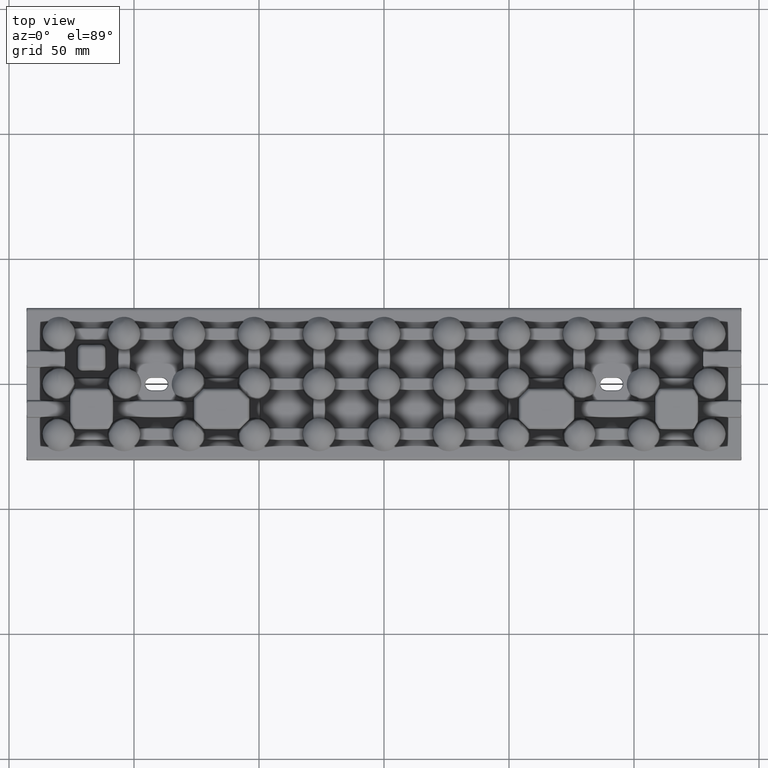
[diagram: clean part render]
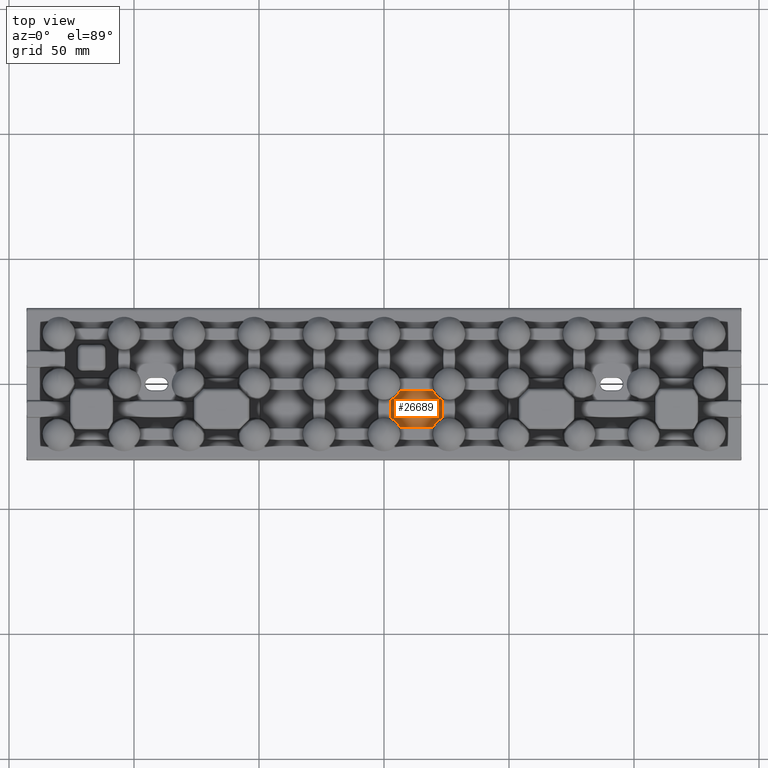
[diagram: same view with one face highlighted and labeled with its STEP entity id]
A machine part, top view. The second image highlights one B-rep face of the part: STEP entity #26689.
In plain terms, the highlighted planar face has unit normal (-0, 0, 1).
Its self-contained STEP definition (entity closure, byte-faithful):
#3742 = CARTESIAN_POINT ( 'NONE',  ( 6.315966316699420900, -2.741422193701768400, 2.000000000000000000 ) ) ;
#4114 = CARTESIAN_POINT ( 'NONE',  ( 2.741422193701768000, -6.345385911169477000, 2.000000000000000000 ) ) ;
#5191 = ORIENTED_EDGE ( 'NONE', *, *, #21857, .F. ) ;
#7078 = EDGE_CURVE ( 'NONE', #44565, #33855, #13815, .T. ) ;
#7978 = DIRECTION ( 'NONE',  ( -0.0000000000000000000, 0.0000000000000000000, 1.000000000000000000 ) ) ;
#10615 = CARTESIAN_POINT ( 'NONE',  ( 22.47589171774211200, -14.03245563550353100, 1.999999999999997800 ) ) ;
#11735 = CARTESIAN_POINT ( 'NONE',  ( 2.741422193701768000, -6.345385911169477000, 2.000000000000000000 ) ) ;
#11989 = CARTESIAN_POINT ( 'NONE',  ( 6.315966316699420900, -2.741422193701768400, 2.000000000000000000 ) ) ;
#12011 = ORIENTED_EDGE ( 'NONE', *, *, #67958, .F. ) ;
#13200 = DIRECTION ( 'NONE',  ( 0.0000000000000000000, 1.000000000000000000, -0.0000000000000000000 ) ) ;
#13815 = B_SPLINE_CURVE_WITH_KNOTS ( 'NONE', 3,
 ( #101892, #102245, #10615, #69018, #19110, #77411, #27464, #85783, #35857, #94218, #44250, #102616 ),
 .UNSPECIFIED., .F., .F.,
 ( 4, 2, 2, 2, 2, 4 ),
 ( 0.0000000000000000000, 0.001295068706186202700, 0.001942603059279298300, 0.002590137412372393800, 0.003885206118558585200, 0.005180274824744776300 ),
 .UNSPECIFIED. ) ;
#14100 = CARTESIAN_POINT ( 'NONE',  ( 23.25857780629830900, -13.65461406036727100, 2.000000000000000000 ) ) ;
#15479 = CARTESIAN_POINT ( 'NONE',  ( 2.741422193701769800, -14.43582890270256800, 2.000000000000000000 ) ) ;
#15930 = LINE ( 'NONE', #89771, #60230 ) ;
#16424 = CARTESIAN_POINT ( 'NONE',  ( 5.943341994366689600, -16.47325498181712400, 1.999999999999999100 ) ) ;
#19110 = CARTESIAN_POINT ( 'NONE',  ( 21.76516652872660600, -14.52388456786810300, 1.999999999999996700 ) ) ;
#19440 = LINE ( 'NONE', #34272, #85948 ) ;
#20005 = VERTEX_POINT ( 'NONE', #106823 ) ;
#20210 = CARTESIAN_POINT ( 'NONE',  ( 3.524108263181240400, -5.967544323129207100, 2.000000000000000900 ) ) ;
#21218 = VERTEX_POINT ( 'NONE', #4114 ) ;
#21675 = VERTEX_POINT ( 'NONE', #11989 ) ;
#21681 = CARTESIAN_POINT ( 'NONE',  ( 20.41397382994982500, -4.067312736983884000, 1.999999999999997800 ) ) ;
#21857 = EDGE_CURVE ( 'NONE', #20005, #68088, #90964, .T. ) ;
#21928 = EDGE_CURVE ( 'NONE', #20005, #33855, #19440, .T. ) ;
#24815 = CARTESIAN_POINT ( 'NONE',  ( 5.458179694001565000, -15.75793540114586300, 2.000000000000312600 ) ) ;
#26689 = ADVANCED_FACE ( 'NONE', ( #73991 ), #108030, .T. ) ;
#26833 = ORIENTED_EDGE ( 'NONE', *, *, #40077, .F. ) ;
#27464 = CARTESIAN_POINT ( 'NONE',  ( 21.26731188972543800, -14.94879724506803100, 1.999999999999999100 ) ) ;
#28582 = CARTESIAN_POINT ( 'NONE',  ( 4.234833434024561200, -5.476115384367102700, 1.999999999999999100 ) ) ;
#29685 = CARTESIAN_POINT ( 'NONE',  ( 19.85337189919918200, -3.144642073433744600, 1.999999999999999600 ) ) ;
#30040 = CARTESIAN_POINT ( 'NONE',  ( 20.81581587538955300, -4.580183335617707700, 2.000000000000313100 ) ) ;
#30386 = EDGE_LOOP ( 'NONE', ( #103383, #36634, #12011, #65014, #26833, #92169, #5191, #83261 ) ) ;
#33198 = CARTESIAN_POINT ( 'NONE',  ( 5.037601783124292100, -15.25623881247116900, 2.000000000000265100 ) ) ;
#33855 = VERTEX_POINT ( 'NONE', #99737 ) ;
#34163 = EDGE_CURVE ( 'NONE', #44565, #38449, #15930, .T. ) ;
#34272 = CARTESIAN_POINT ( 'NONE',  ( 20.43582890270252500, -17.25857780629830200, 2.000000000000000000 ) ) ;
#35857 = CARTESIAN_POINT ( 'NONE',  ( 20.53792801313349500, -15.74603679258445500, 2.000000000000000900 ) ) ;
#36634 = ORIENTED_EDGE ( 'NONE', *, *, #34163, .T. ) ;
#36960 = CARTESIAN_POINT ( 'NONE',  ( 4.732688062117533800, -5.051202708837520200, 2.000000000000000000 ) ) ;
#37446 = CARTESIAN_POINT ( 'NONE',  ( 19.68403363611609100, -2.741422193701764900, 2.000000000000000000 ) ) ;
#38431 = CARTESIAN_POINT ( 'NONE',  ( 21.42064771702581200, -5.205751179353793400, 2.000000000000266000 ) ) ;
#38449 = VERTEX_POINT ( 'NONE', #47460 ) ;
#38670 = VECTOR ( 'NONE', #55305, 1000.000000000000000 ) ;
#40077 = EDGE_CURVE ( 'NONE', #21218, #21675, #84989, .T. ) ;
#41225 = CARTESIAN_POINT ( 'NONE',  ( 6.315966316699402200, -17.25857780629830500, 2.000000000000000000 ) ) ;
#41590 = CARTESIAN_POINT ( 'NONE',  ( 4.246793451152211000, -14.52009018028383000, 2.000000000000000000 ) ) ;
#44250 = CARTESIAN_POINT ( 'NONE',  ( 19.85335993345948300, -16.85538641879258000, 2.000000000000000900 ) ) ;
#44565 = VERTEX_POINT ( 'NONE', #14100 ) ;
#45357 = CARTESIAN_POINT ( 'NONE',  ( 5.462071932007321900, -4.253963174259894200, 1.999999999999999600 ) ) ;
#46818 = CARTESIAN_POINT ( 'NONE',  ( 22.46971738124317100, -5.963965219673109900, 2.000000000000000900 ) ) ;
#47460 = CARTESIAN_POINT ( 'NONE',  ( 23.25857780629830900, -6.345385939632755900, 2.000000000000000000 ) ) ;
#49988 = CARTESIAN_POINT ( 'NONE',  ( 3.144049424876027600, -13.82559729236460600, 2.000000000000003100 ) ) ;
#53387 = CARTESIAN_POINT ( 'NONE',  ( 3.144112299297860500, -6.174376006833239400, 2.000000000000000400 ) ) ;
#53750 = CARTESIAN_POINT ( 'NONE',  ( 6.146640014527044100, -3.144613572644897400, 2.000000000000000000 ) ) ;
#55173 = CARTESIAN_POINT ( 'NONE',  ( 23.25857780629830900, -6.345385939632755900, 2.000000000000000000 ) ) ;
#55305 = DIRECTION ( 'NONE',  ( -1.000000000000000000, -2.891205793294668500E-016, 0.0000000000000000000 ) ) ;
#60230 = VECTOR ( 'NONE', #13200, 1000.000000000000000 ) ;
#60789 = LINE ( 'NONE', #96899, #38670 ) ;
#64911 = CARTESIAN_POINT ( 'NONE',  ( 6.146628048878926400, -16.85535793534833700, 1.999999999999999600 ) ) ;
#65014 = ORIENTED_EDGE ( 'NONE', *, *, #107525, .T. ) ;
#65279 = LINE ( 'NONE', #15479, #79646 ) ;
#66333 = DIRECTION ( 'NONE',  ( 1.000000000000000000, 0.0000000000000000000, 0.0000000000000000000 ) ) ;
#67958 = EDGE_CURVE ( 'NONE', #87144, #38449, #83058, .T. ) ;
#68088 = VERTEX_POINT ( 'NONE', #82863 ) ;
#69018 = CARTESIAN_POINT ( 'NONE',  ( 21.93870324216921500, -14.39448527756340100, 1.999999999999999600 ) ) ;
#71629 = CARTESIAN_POINT ( 'NONE',  ( 20.05665795104284800, -3.526745035104520200, 1.999999999999998700 ) ) ;
#73991 = FACE_OUTER_BOUND ( 'NONE', #30386, .T. ) ;
#74754 = CARTESIAN_POINT ( 'NONE',  ( 5.586026114631582800, -15.93268729116671700, 1.999999999999999600 ) ) ;
#77411 = CARTESIAN_POINT ( 'NONE',  ( 21.42958853242476300, -14.80082821876564300, 1.999999999999995800 ) ) ;
#78541 = CARTESIAN_POINT ( 'NONE',  ( 4.061296724942685900, -5.605514675690892900, 2.000000000000000900 ) ) ;
#79637 = CARTESIAN_POINT ( 'NONE',  ( 19.68403363611609100, -2.741422193701764900, 2.000000000000000000 ) ) ;
#79646 = VECTOR ( 'NONE', #82225, 1000.000000000000000 ) ;
#79997 = CARTESIAN_POINT ( 'NONE',  ( 20.54182025091697000, -4.242064630532226500, 2.000000000000313100 ) ) ;
#82225 = DIRECTION ( 'NONE',  ( 2.023844055306265400E-016, -1.000000000000000000, 0.0000000000000000000 ) ) ;
#82863 = CARTESIAN_POINT ( 'NONE',  ( 2.741422193701769800, -13.65461408883056800, 2.000000000000000000 ) ) ;
#83058 = B_SPLINE_CURVE_WITH_KNOTS ( 'NONE', 3,
 ( #79637, #29685, #71629, #21681, #79997, #30040, #88356, #38431, #96766, #46818, #105189, #55173 ),
 .UNSPECIFIED., .F., .F.,
 ( 4, 2, 2, 2, 2, 4 ),
 ( 4.906538933386797400E-018, 0.001295481799448544300, 0.001943222699172811100, 0.002590963598897077700, 0.003886445398345612700, 0.005181927197794148500 ),
 .UNSPECIFIED. ) ;
#83148 = CARTESIAN_POINT ( 'NONE',  ( 5.184184071321774400, -15.41981670276704500, 2.000000000000312600 ) ) ;
#83261 = ORIENTED_EDGE ( 'NONE', *, *, #21928, .T. ) ;
#84989 = B_SPLINE_CURVE_WITH_KNOTS ( 'NONE', 3,
 ( #11735, #53387, #20210, #78541, #28582, #86894, #36960, #95322, #45357, #103714, #53750, #3742 ),
 .UNSPECIFIED., .F., .F.,
 ( 4, 2, 2, 2, 2, 4 ),
 ( 0.0000000000000000000, 0.001295068689349902200, 0.001942603034024852200, 0.002590137378699802600, 0.003885206068049702600, 0.005180274757399605200 ),
 .UNSPECIFIED. ) ;
#85068 = EDGE_CURVE ( 'NONE', #21218, #68088, #65279, .T. ) ;
#85783 = CARTESIAN_POINT ( 'NONE',  ( 20.80908429765178600, -15.41088223326647900, 1.999999999999999100 ) ) ;
#85948 = VECTOR ( 'NONE', #92602, 1000.000000000000000 ) ;
#86894 = CARTESIAN_POINT ( 'NONE',  ( 4.570411422609669000, -5.199171733828576300, 1.999999999999997800 ) ) ;
#87144 = VERTEX_POINT ( 'NONE', #37446 ) ;
#88356 = CARTESIAN_POINT ( 'NONE',  ( 20.96239816475062100, -4.743761229110164700, 2.000000000000265100 ) ) ;
#89771 = CARTESIAN_POINT ( 'NONE',  ( 23.25857780629830900, -5.564171097297501600, 2.000000000000000000 ) ) ;
#90964 = B_SPLINE_CURVE_WITH_KNOTS ( 'NONE', 3,
 ( #41225, #64911, #16424, #74754, #24815, #83148, #33198, #91529, #41590, #99938, #49988, #108377 ),
 .UNSPECIFIED., .F., .F.,
 ( 4, 2, 2, 2, 2, 4 ),
 ( 0.0000000000000000000, 0.001295481781743280400, 0.001943222672614924600, 0.002590963563486573300, 0.003886445345229873900, 0.005181927126973175300 ),
 .UNSPECIFIED. ) ;
#91162 = CARTESIAN_POINT ( 'NONE',  ( 0.0000000000000000000, 0.0000000000000000000, 2.000000000000000000 ) ) ;
#91529 = CARTESIAN_POINT ( 'NONE',  ( 4.579352236316249300, -14.79424886853200900, 2.000000000000265100 ) ) ;
#92169 = ORIENTED_EDGE ( 'NONE', *, *, #85068, .T. ) ;
#92602 = DIRECTION ( 'NONE',  ( 1.000000000000000000, 1.652117596168382100E-016, 0.0000000000000000000 ) ) ;
#94218 = CARTESIAN_POINT ( 'NONE',  ( 20.06007415873578700, -16.46722729985187800, 2.000000000000000900 ) ) ;
#95322 = CARTESIAN_POINT ( 'NONE',  ( 5.190915648623230200, -4.589117727000813200, 2.000000000000000900 ) ) ;
#96766 = CARTESIAN_POINT ( 'NONE',  ( 21.75320650960330600, -5.479909867093274700, 2.000000000000000000 ) ) ;
#96899 = CARTESIAN_POINT ( 'NONE',  ( 5.564171097297355900, -2.741422193701768900, 2.000000000000000000 ) ) ;
#99737 = CARTESIAN_POINT ( 'NONE',  ( 19.68403363611606200, -17.25857780629830200, 2.000000000000000000 ) ) ;
#99938 = CARTESIAN_POINT ( 'NONE',  ( 3.530282598638253800, -14.03603482131242500, 2.000000000000000400 ) ) ;
#101892 = CARTESIAN_POINT ( 'NONE',  ( 23.25857780629830900, -13.65461406036727100, 2.000000000000000000 ) ) ;
#102245 = CARTESIAN_POINT ( 'NONE',  ( 22.85588769174825400, -13.82562395837313000, 1.999999999999999100 ) ) ;
#102616 = CARTESIAN_POINT ( 'NONE',  ( 19.68403363611606200, -17.25857780629830200, 2.000000000000000000 ) ) ;
#102944 = AXIS2_PLACEMENT_3D ( 'NONE', #91162, #7978, #66333 ) ;
#103383 = ORIENTED_EDGE ( 'NONE', *, *, #7078, .F. ) ;
#103714 = CARTESIAN_POINT ( 'NONE',  ( 5.939925786771949500, -3.532772682792173900, 1.999999999999998700 ) ) ;
#105189 = CARTESIAN_POINT ( 'NONE',  ( 22.85595056598297200, -6.174402742348067200, 2.000000000000002700 ) ) ;
#106823 = CARTESIAN_POINT ( 'NONE',  ( 6.315966316699402200, -17.25857780629830500, 2.000000000000000000 ) ) ;
#107525 = EDGE_CURVE ( 'NONE', #87144, #21675, #60789, .T. ) ;
#108030 = PLANE ( 'NONE',  #102944 ) ;
#108377 = CARTESIAN_POINT ( 'NONE',  ( 2.741422193701769800, -13.65461408883056800, 2.000000000000000000 ) ) ;